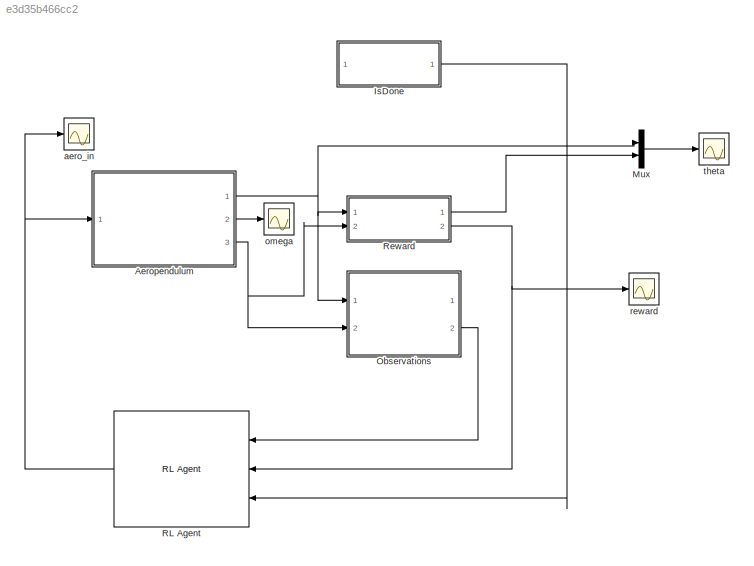
MODEL slx_e3d35b466cc2
KIND model
CONFIG AbsTol = auto
CONFIG EnableMultiTasking = off
CONFIG FixedStep = auto
CONFIG MaxStep = auto
CONFIG MinStep = auto
CONFIG RelTol = 1e-3
CONFIG SampleTimeConstraint = Unconstrained
CONFIG SolverName = VariableStepAuto
CONFIG StartTime = 0.0
CONFIG StopTime = 60.0
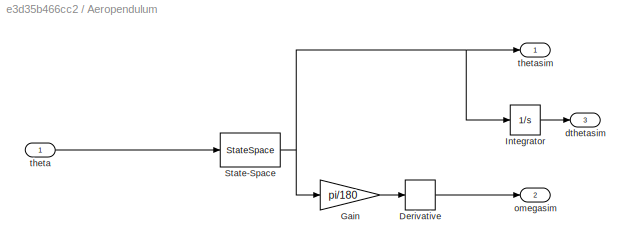
BLOCK [SubSystem] Aeropendulum
  Ports = [1, 3]
  RequestExecContextInheritance = off
BLOCK [Derivative] Aeropendulum/Derivative
BLOCK [Gain] Aeropendulum/Gain
  Gain = pi/180
BLOCK [Integrator] Aeropendulum/Integrator
  Ports = [1, 1]
BLOCK [StateSpace] Aeropendulum/State-Space
  A = A
  B = B
  C = C
  D = 0
  InitialCondition = 0
  Ports = [1, 1]
BLOCK [Outport] Aeropendulum/dthetasim
  Port = 3
BLOCK [Outport] Aeropendulum/omegasim
  Port = 2
BLOCK [Inport] Aeropendulum/theta
BLOCK [Outport] Aeropendulum/thetasim
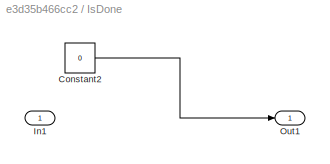
BLOCK [SubSystem] IsDone
  Ports = [1, 1]
  RequestExecContextInheritance = off
BLOCK [Constant] IsDone/Constant2
  Value = 0
BLOCK [Inport] IsDone/In1
BLOCK [Outport] IsDone/Out1
BLOCK [Mux] Mux
  DisplayOption = bar
  Inputs = 2
  Ports = [2, 1]
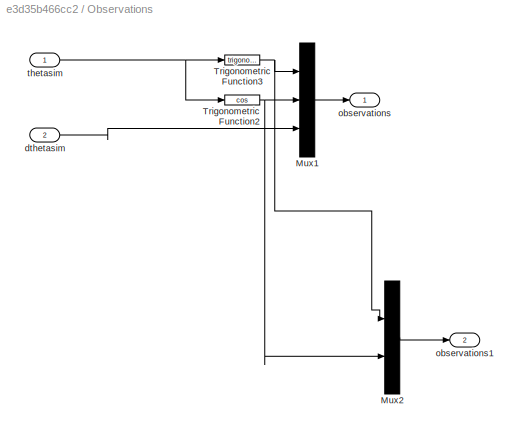
BLOCK [SubSystem] Observations
  Ports = [2, 2]
  RequestExecContextInheritance = off
BLOCK [Mux] Observations/Mux1
  DisplayOption = bar
  Inputs = 3
  Ports = [3, 1]
BLOCK [Mux] Observations/Mux2
  DisplayOption = bar
  Inputs = 2
  Ports = [2, 1]
BLOCK [Trigonometry] Observations/Trigonometric Function2
  Operator = cos
  Ports = [1, 1]
BLOCK [Trigonometry] Observations/Trigonometric Function3
  Ports = [1, 1]
BLOCK [Inport] Observations/dthetasim
  Port = 2
BLOCK [Outport] Observations/observations
BLOCK [Outport] Observations/observations1
  Port = 2
BLOCK [Inport] Observations/thetasim
BLOCK [Reference] RL Agent  REF=rllib/RL Agent
  Ports = [3, 1]
  SourceBlock = rllib/RL Agent
  SourceProductBaseCode = RL
  SourceType = RL Agent
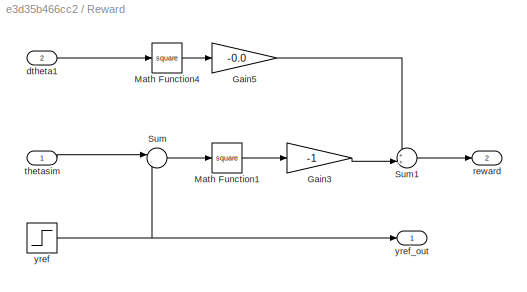
BLOCK [SubSystem] Reward
  Ports = [2, 2]
  RequestExecContextInheritance = off
BLOCK [Gain] Reward/Gain3
  Gain = -1
BLOCK [Gain] Reward/Gain5
  Gain = -0.0
BLOCK [Math] Reward/Math Function1
  Operator = square
  Ports = [1, 1]
  SignedPower = on
BLOCK [Math] Reward/Math Function4
  Operator = square
  Ports = [1, 1]
  SignedPower = on
BLOCK [Sum] Reward/Sum
  Inputs = |-+
  Ports = [2, 1]
BLOCK [Sum] Reward/Sum1
  Inputs = ++|
  Ports = [2, 1]
BLOCK [Inport] Reward/dtheta1
  Port = 2
BLOCK [Outport] Reward/reward
  Port = 2
BLOCK [Inport] Reward/thetasim
BLOCK [Step] Reward/yref
  After = yref
  SampleTime = 0
  Time = 0
BLOCK [Outport] Reward/yref_out
BLOCK [Scope] aero_in
  Floating = off
  NumInputPorts = 1
  Ports = [1]
  ScopeSpecificationString = Simulink.scopes.TimeScopeBlockCfg('CurrentConfiguration', extmgr.ConfigurationSet(extmgr.Configuration('Core','General UI',true),extmgr.Configuration('Core','Source UI',true),extmgr.Configuration('Sources','WiredSimulink',true,'DataLoggingVariableName','ScopeData1'),extmgr.Configuration('Visuals','Time Domain',true,'SerializedDisplays',{struct('MinYLimReal','1.54372','MaxYLimReal','4.96886','YLabe...<+1473ch>
BLOCK [Scope] omega
  Floating = off
  NumInputPorts = 1
  Ports = [1]
  ScopeSpecificationString = Simulink.scopes.TimeScopeBlockCfg('CurrentConfiguration', extmgr.ConfigurationSet(extmgr.Configuration('Core','General UI',true),extmgr.Configuration('Core','Source UI',true),extmgr.Configuration('Sources','WiredSimulink',true,'DataLoggingVariableName','ScopeData1'),extmgr.Configuration('Visuals','Time Domain',true,'SerializedDisplays',{struct('MinYLimReal','-0.27563','MaxYLimReal','0.59981','YLab...<+1481ch>
BLOCK [Scope] reward
  Floating = off
  NumInputPorts = 1
  Ports = [1]
  ScopeSpecificationString = Simulink.scopes.TimeScopeBlockCfg('CurrentConfiguration', extmgr.ConfigurationSet(extmgr.Configuration('Core','General UI',true),extmgr.Configuration('Core','Source UI',true),extmgr.Configuration('Sources','WiredSimulink',true,'DataLoggingVariableName','ScopeData2'),extmgr.Configuration('Visuals','Time Domain',true,'SerializedDisplays',{struct('MinYLimReal','-4049.99053','MaxYLimReal','449.91477',...<+1460ch>
BLOCK [Scope] theta
  Floating = off
  NumInputPorts = 1
  Ports = [1]
  ScopeSpecificationString = Simulink.scopes.TimeScopeBlockCfg('CurrentConfiguration', extmgr.ConfigurationSet(extmgr.Configuration('Core','General UI',true),extmgr.Configuration('Core','Source UI',true),extmgr.Configuration('Sources','WiredSimulink',true),extmgr.Configuration('Visuals','Time Domain',true,'SerializedDisplays',{struct('MinYLimReal','-10.15922','MaxYLimReal','91.43296','YLabelReal','','MinYLimMag','0.00000','Ma...<+1438ch>
LINE Aeropendulum/Derivative:1 -> Aeropendulum/omegasim:1
LINE Aeropendulum/Gain:1 -> Aeropendulum/Derivative:1
LINE Aeropendulum/Integrator:1 -> Aeropendulum/dthetasim:1
NET Aeropendulum/State-Space:1 -> Aeropendulum/Gain:1, Aeropendulum/Integrator:1, Aeropendulum/thetasim:1
LINE Aeropendulum/theta:1 -> Aeropendulum/State-Space:1
NET Aeropendulum:1 -> Mux:1, Observations:1, Reward:1
LINE Aeropendulum:2 -> omega:1
NET Aeropendulum:3 -> Observations:2, Reward:2
LINE IsDone/Constant2:1 -> IsDone/Out1:1
LINE IsDone:1 -> RL Agent:3
LINE Mux:1 -> theta:1
LINE Observations/Mux1:1 -> Observations/observations:1
LINE Observations/Mux2:1 -> Observations/observations1:1
NET Observations/Trigonometric Function2:1 -> Observations/Mux1:2, Observations/Mux2:2
NET Observations/Trigonometric Function3:1 -> Observations/Mux1:1, Observations/Mux2:1
LINE Observations/dthetasim:1 -> Observations/Mux1:3
NET Observations/thetasim:1 -> Observations/Trigonometric Function2:1, Observations/Trigonometric Function3:1
LINE Observations:2 -> RL Agent:1
NET RL Agent:1 -> Aeropendulum:1, aero_in:1
LINE Reward/Gain3:1 -> Reward/Sum1:2
LINE Reward/Gain5:1 -> Reward/Sum1:1
LINE Reward/Math Function1:1 -> Reward/Gain3:1
LINE Reward/Math Function4:1 -> Reward/Gain5:1
LINE Reward/Sum1:1 -> Reward/reward:1
LINE Reward/Sum:1 -> Reward/Math Function1:1
LINE Reward/dtheta1:1 -> Reward/Math Function4:1
LINE Reward/thetasim:1 -> Reward/Sum:1
NET Reward/yref:1 -> Reward/Sum:2, Reward/yref_out:1
LINE Reward:1 -> Mux:2
NET Reward:2 -> RL Agent:2, reward:1
note: NET lines group one-source signal fan-out (src -> all destinations, sorted); 1:1 wires keep LINE
